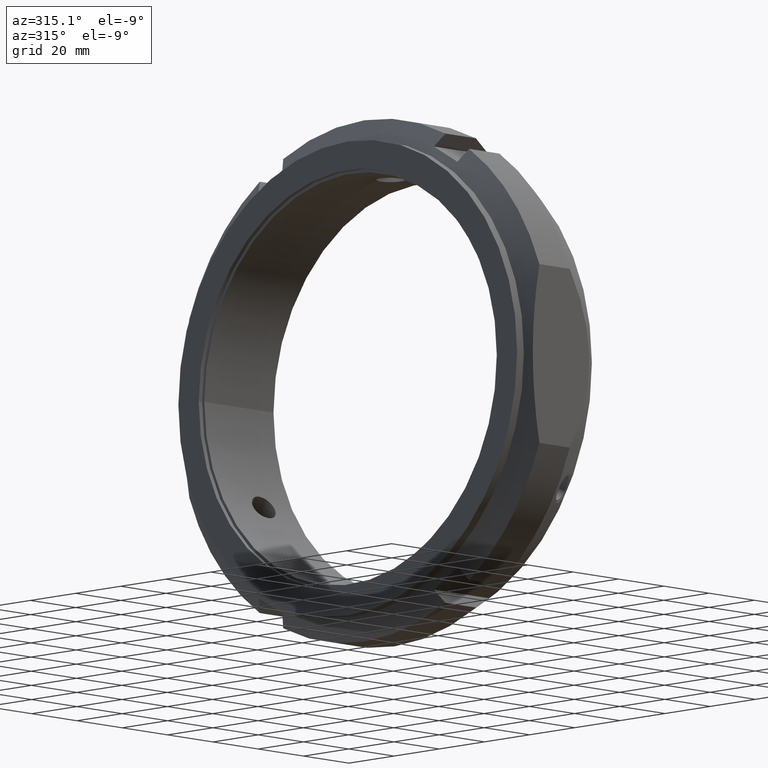
[diagram: clean part render]
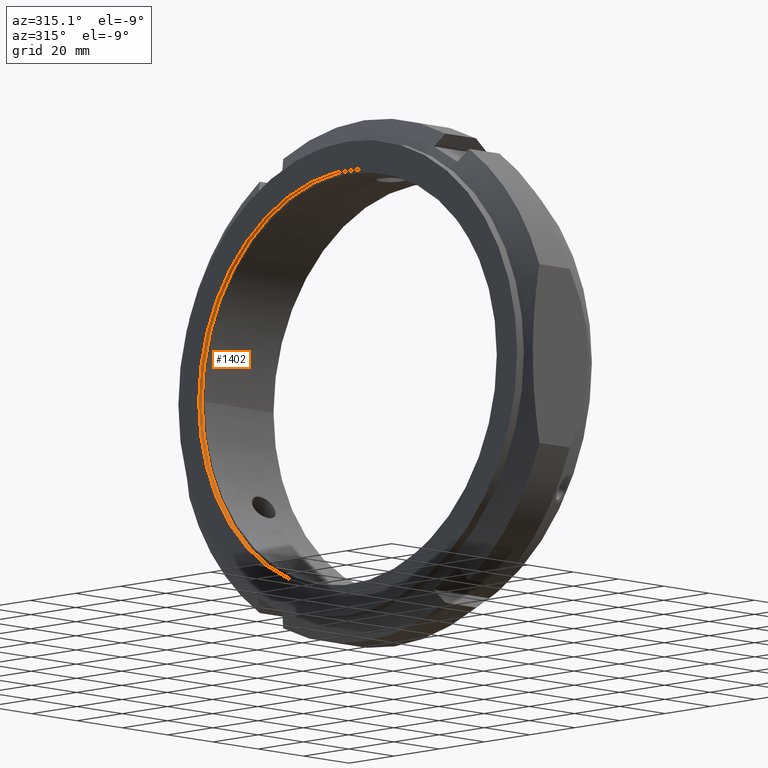
[diagram: same view with one face highlighted and labeled with its STEP entity id]
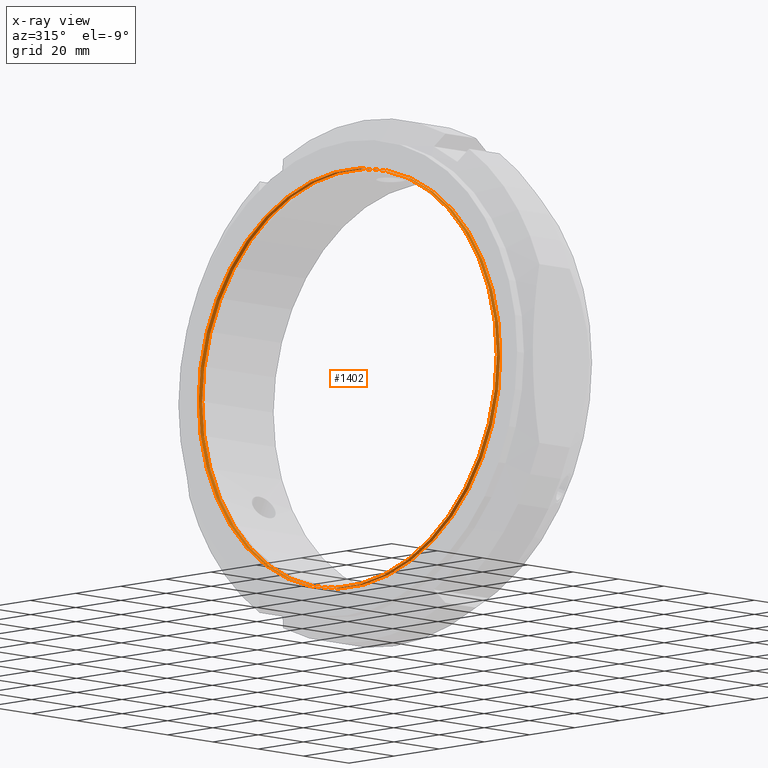
[diagram: x-ray of the same camera — body ghosted, the highlighted face saturated]
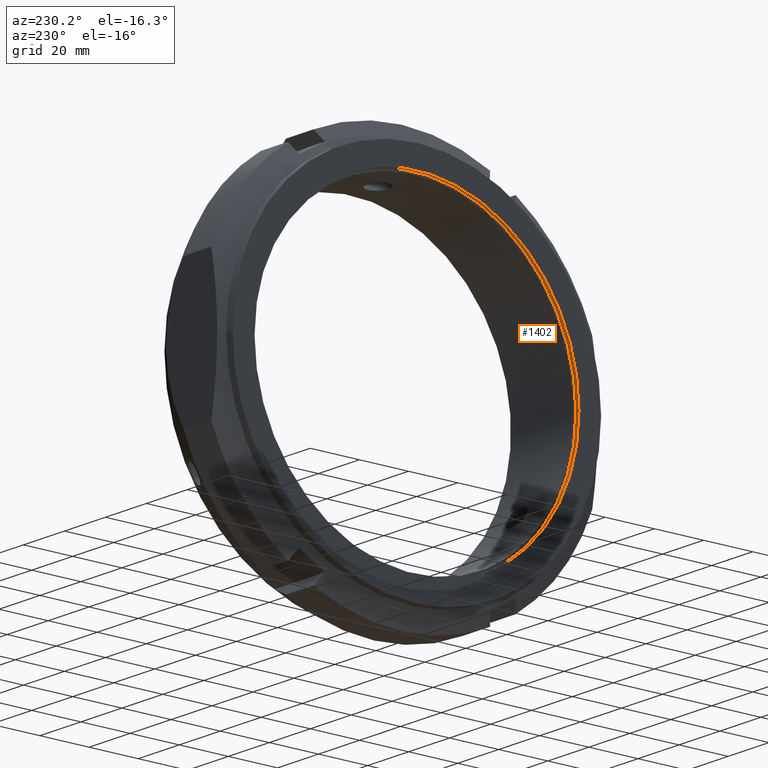
[diagram: same view with one face highlighted and labeled with its STEP entity id]
A machine part, auxiliary view. The second image highlights one B-rep face of the part: STEP entity #1402.
The next image is the same camera in x-ray: the body ghosted, the highlighted face saturated — about 0% of this face is hidden behind the body in this view.
A second angle (auxiliary view) of the same face is appended — the face is thin or edge-on in the first view.
In plain terms, the highlighted cylindrical surface (bore or boss wall) has radius 66 mm, axis along (1, 0, 0).
Its self-contained STEP definition (entity closure, byte-faithful):
#1360=CARTESIAN_POINT('',(1.499999999999981,66.0,0.0));
#1361=VERTEX_POINT('',#1360);
#1362=CARTESIAN_POINT('',(1.499999999999981,0.0,0.0));
#1363=DIRECTION('',(1.0,0.0,0.0));
#1364=DIRECTION('',(0.0,1.0,0.0));
#1365=AXIS2_PLACEMENT_3D('',#1362,#1363,#1364);
#1366=CIRCLE('',#1365,66.0);
#1367=EDGE_CURVE('',#1361,#1361,#1366,.T.);
#1383=CARTESIAN_POINT('',(0.749999999999981,0.0,0.0));
#1384=DIRECTION('',(1.0,0.0,0.0));
#1385=DIRECTION('',(0.0,1.0,0.0));
#1386=AXIS2_PLACEMENT_3D('',#1383,#1384,#1385);
#1387=CYLINDRICAL_SURFACE('',#1386,66.0);
#1388=CARTESIAN_POINT('',(-1.942890E-014,66.0,0.0));
#1389=VERTEX_POINT('',#1388);
#1390=CARTESIAN_POINT('',(-1.942890E-014,0.0,0.0));
#1391=DIRECTION('',(1.0,0.0,0.0));
#1392=DIRECTION('',(0.0,1.0,0.0));
#1393=AXIS2_PLACEMENT_3D('',#1390,#1391,#1392);
#1394=CIRCLE('',#1393,66.0);
#1395=EDGE_CURVE('',#1389,#1389,#1394,.T.);
#1396=ORIENTED_EDGE('',*,*,#1395,.F.);
#1397=EDGE_LOOP('',(#1396));
#1398=FACE_OUTER_BOUND('',#1397,.T.);
#1399=ORIENTED_EDGE('',*,*,#1367,.T.);
#1400=EDGE_LOOP('',(#1399));
#1401=FACE_BOUND('',#1400,.T.);
#1402=ADVANCED_FACE('',(#1398,#1401),#1387,.F.);